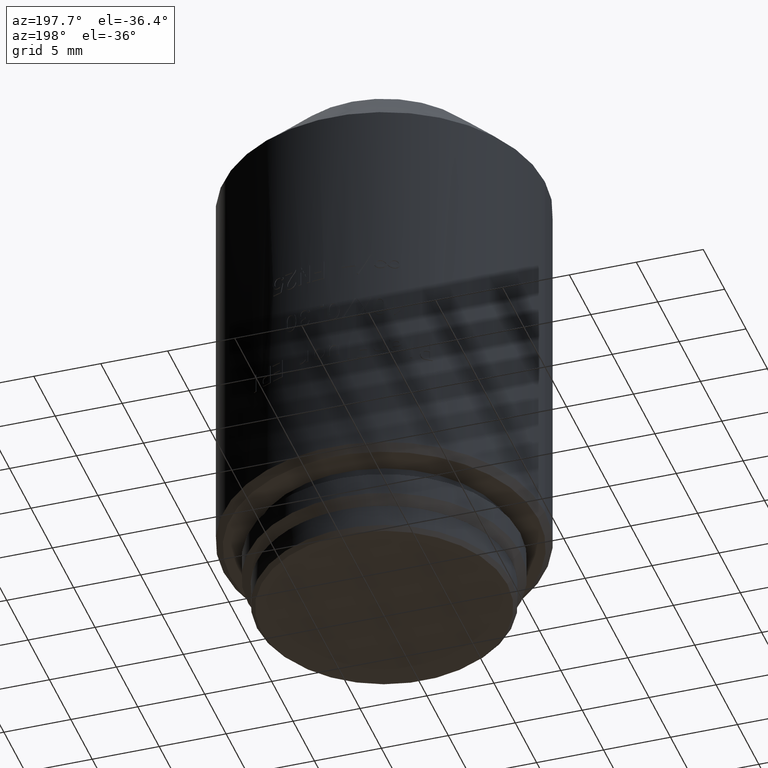
[diagram: clean part render]
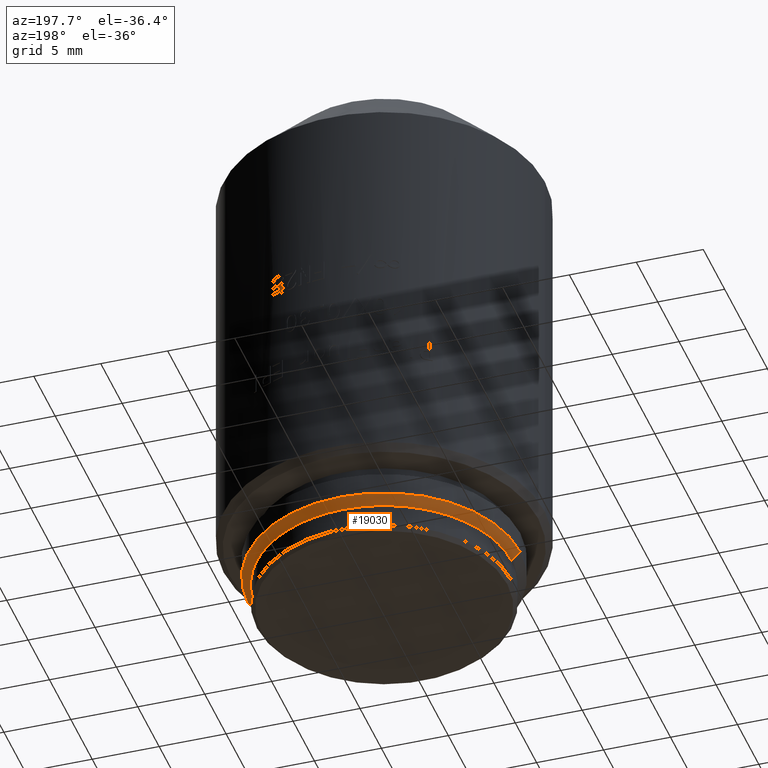
[diagram: same view with one face highlighted and labeled with its STEP entity id]
A machine part, auxiliary view. The second image highlights one B-rep face of the part: STEP entity #19030.
In plain terms, the highlighted conical surface has half-angle 45 deg.
Its self-contained STEP definition (entity closure, byte-faithful):
#656 = AXIS2_PLACEMENT_3D ( 'NONE', #18604, #13574, #12009 ) ;
#1735 = ORIENTED_EDGE ( 'NONE', *, *, #11044, .F. ) ;
#2617 = CARTESIAN_POINT ( 'NONE',  ( -10.16000000000000014, 1.244241147933710864E-15, 2.649999999999999911 ) ) ;
#2791 = AXIS2_PLACEMENT_3D ( 'NONE', #6109, #7432, #9118 ) ;
#3722 = AXIS2_PLACEMENT_3D ( 'NONE', #20455, #8728, #8833 ) ;
#3943 = LINE ( 'NONE', #15684, #7400 ) ;
#4811 = VERTEX_POINT ( 'NONE', #11599 ) ;
#4931 = ORIENTED_EDGE ( 'NONE', *, *, #17609, .T. ) ;
#6109 = CARTESIAN_POINT ( 'NONE',  ( 0.000000000000000000, 0.000000000000000000, 2.649999999999999911 ) ) ;
#6510 = VERTEX_POINT ( 'NONE', #6802 ) ;
#6802 = CARTESIAN_POINT ( 'NONE',  ( -9.509999999999999787, 1.204440126961421665E-15, 2.000000000000000000 ) ) ;
#7289 = CIRCLE ( 'NONE', #3722, 9.509999999999999787 ) ;
#7400 = VECTOR ( 'NONE', #16135, 1000.000000000000000 ) ;
#7432 = DIRECTION ( 'NONE',  ( 0.000000000000000000, 0.000000000000000000, 1.000000000000000000 ) ) ;
#8726 = VERTEX_POINT ( 'NONE', #2617 ) ;
#8728 = DIRECTION ( 'NONE',  ( 0.000000000000000000, 0.000000000000000000, -1.000000000000000000 ) ) ;
#8833 = DIRECTION ( 'NONE',  ( -1.000000000000000000, 0.000000000000000000, 0.000000000000000000 ) ) ;
#9118 = DIRECTION ( 'NONE',  ( 1.000000000000000000, 0.000000000000000000, 0.000000000000000000 ) ) ;
#9464 = FACE_OUTER_BOUND ( 'NONE', #19202, .T. ) ;
#9893 = EDGE_CURVE ( 'NONE', #4811, #8726, #20329, .T. ) ;
#9906 = DIRECTION ( 'NONE',  ( -0.7071067811865470176, 8.659560562354926695E-17, 0.7071067811865480168 ) ) ;
#11044 = EDGE_CURVE ( 'NONE', #17620, #4811, #3943, .T. ) ;
#11575 = VECTOR ( 'NONE', #9906, 1000.000000000000000 ) ;
#11599 = CARTESIAN_POINT ( 'NONE',  ( 10.16000000000000014, 0.000000000000000000, 2.649999999999999911 ) ) ;
#12009 = DIRECTION ( 'NONE',  ( -1.000000000000000000, 0.000000000000000000, 0.000000000000000000 ) ) ;
#12016 = LINE ( 'NONE', #15032, #11575 ) ;
#12066 = CONICAL_SURFACE ( 'NONE', #2791, 10.16000000000000014, 0.7853981633974476129 ) ;
#13574 = DIRECTION ( 'NONE',  ( 0.000000000000000000, 0.000000000000000000, 1.000000000000000000 ) ) ;
#15032 = CARTESIAN_POINT ( 'NONE',  ( -10.16000000000000014, 1.244241147933710864E-15, 2.649999999999999911 ) ) ;
#15684 = CARTESIAN_POINT ( 'NONE',  ( 10.16000000000000014, 0.000000000000000000, 2.649999999999999911 ) ) ;
#16135 = DIRECTION ( 'NONE',  ( 0.7071067811865470176, 0.000000000000000000, 0.7071067811865480168 ) ) ;
#16144 = ORIENTED_EDGE ( 'NONE', *, *, #17481, .F. ) ;
#17481 = EDGE_CURVE ( 'NONE', #6510, #17620, #7289, .T. ) ;
#17609 = EDGE_CURVE ( 'NONE', #6510, #8726, #12016, .T. ) ;
#17620 = VERTEX_POINT ( 'NONE', #22082 ) ;
#18604 = CARTESIAN_POINT ( 'NONE',  ( 0.000000000000000000, 0.000000000000000000, 2.649999999999999911 ) ) ;
#19030 = ADVANCED_FACE ( 'NONE', ( #9464 ), #12066, .T. ) ;
#19202 = EDGE_LOOP ( 'NONE', ( #16144, #4931, #19374, #1735 ) ) ;
#19374 = ORIENTED_EDGE ( 'NONE', *, *, #9893, .F. ) ;
#20329 = CIRCLE ( 'NONE', #656, 10.16000000000000014 ) ;
#20455 = CARTESIAN_POINT ( 'NONE',  ( 0.000000000000000000, 0.000000000000000000, 2.000000000000000000 ) ) ;
#22082 = CARTESIAN_POINT ( 'NONE',  ( 9.509999999999999787, 0.000000000000000000, 2.000000000000000000 ) ) ;